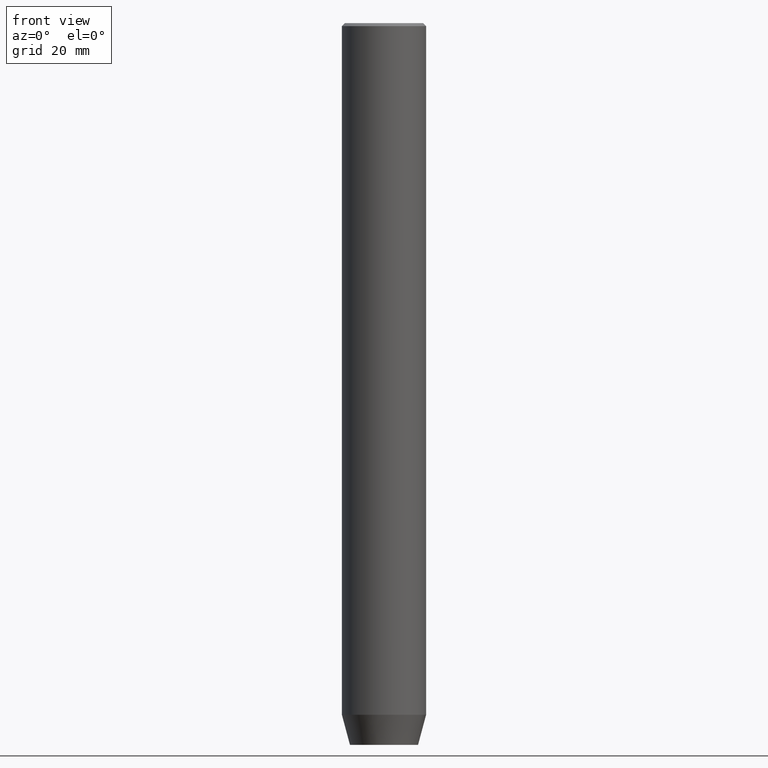
[diagram: clean part render]
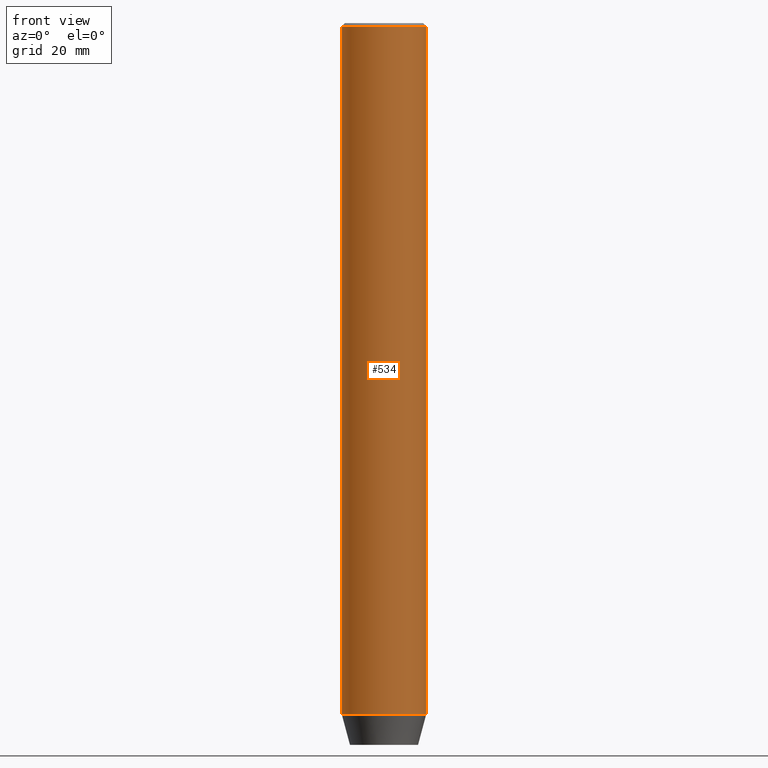
[diagram: same view with one face highlighted and labeled with its STEP entity id]
A machine part, front view. The second image highlights one B-rep face of the part: STEP entity #534.
In plain terms, the highlighted cylindrical surface (partial cylindrical patch) has radius 7 mm, axis along (-0, -0, 1).
Its self-contained STEP definition (entity closure, byte-faithful):
#1 = CYLINDRICAL_SURFACE ( 'NONE', #507, 7.000000000000000000 ) ;
#14 = DIRECTION ( 'NONE',  ( 1.000000000000000000, 0.000000000000000000, 0.000000000000000000 ) ) ;
#38 = VERTEX_POINT ( 'NONE', #381 ) ;
#51 = VECTOR ( 'NONE', #522, 1000.000000000000000 ) ;
#72 = ORIENTED_EDGE ( 'NONE', *, *, #180, .T. ) ;
#109 = DIRECTION ( 'NONE',  ( -0.000000000000000000, -0.000000000000000000, 1.000000000000000000 ) ) ;
#131 = ORIENTED_EDGE ( 'NONE', *, *, #568, .F. ) ;
#138 = VECTOR ( 'NONE', #109, 1000.000000000000000 ) ;
#150 = CARTESIAN_POINT ( 'NONE',  ( -7.000000000000000000, 8.572527594031473190E-16, -0.4999999999999908962 ) ) ;
#151 = EDGE_CURVE ( 'NONE', #389, #274, #421, .T. ) ;
#180 = EDGE_CURVE ( 'NONE', #516, #38, #517, .T. ) ;
#194 = DIRECTION ( 'NONE',  ( -0.000000000000000000, -0.000000000000000000, 1.000000000000000000 ) ) ;
#209 = CARTESIAN_POINT ( 'NONE',  ( 7.000000000000000000, 0.000000000000000000, -0.4999999999999908962 ) ) ;
#258 = EDGE_CURVE ( 'NONE', #38, #389, #523, .T. ) ;
#274 = VERTEX_POINT ( 'NONE', #150 ) ;
#285 = ORIENTED_EDGE ( 'NONE', *, *, #258, .T. ) ;
#294 = DIRECTION ( 'NONE',  ( 1.000000000000000000, 0.000000000000000000, 0.000000000000000000 ) ) ;
#318 = CARTESIAN_POINT ( 'NONE',  ( 0.000000000000000000, 0.000000000000000000, 0.000000000000000000 ) ) ;
#348 = EDGE_LOOP ( 'NONE', ( #131, #72, #285, #401 ) ) ;
#377 = LINE ( 'NONE', #567, #138 ) ;
#380 = DIRECTION ( 'NONE',  ( 0.000000000000000000, 0.000000000000000000, -1.000000000000000000 ) ) ;
#381 = CARTESIAN_POINT ( 'NONE',  ( 7.000000000000000000, 0.000000000000000000, -114.9999999999999858 ) ) ;
#388 = CARTESIAN_POINT ( 'NONE',  ( 0.000000000000000000, 0.000000000000000000, -0.4999999999999908962 ) ) ;
#389 = VERTEX_POINT ( 'NONE', #209 ) ;
#401 = ORIENTED_EDGE ( 'NONE', *, *, #151, .T. ) ;
#408 = FACE_OUTER_BOUND ( 'NONE', #348, .T. ) ;
#421 = CIRCLE ( 'NONE', #584, 7.000000000000000000 ) ;
#424 = CARTESIAN_POINT ( 'NONE',  ( 7.000000000000000000, 0.000000000000000000, 0.000000000000000000 ) ) ;
#472 = DIRECTION ( 'NONE',  ( 1.000000000000000000, 0.000000000000000000, 0.000000000000000000 ) ) ;
#496 = AXIS2_PLACEMENT_3D ( 'NONE', #557, #569, #472 ) ;
#507 = AXIS2_PLACEMENT_3D ( 'NONE', #318, #194, #14 ) ;
#516 = VERTEX_POINT ( 'NONE', #543 ) ;
#517 = CIRCLE ( 'NONE', #496, 7.000000000000000000 ) ;
#522 = DIRECTION ( 'NONE',  ( -0.000000000000000000, -0.000000000000000000, 1.000000000000000000 ) ) ;
#523 = LINE ( 'NONE', #424, #51 ) ;
#534 = ADVANCED_FACE ( 'NONE', ( #408 ), #1, .T. ) ;
#543 = CARTESIAN_POINT ( 'NONE',  ( -7.000000000000000000, 8.572527594031473190E-16, -114.9999999999999858 ) ) ;
#557 = CARTESIAN_POINT ( 'NONE',  ( 0.000000000000000000, 0.000000000000000000, -114.9999999999999858 ) ) ;
#567 = CARTESIAN_POINT ( 'NONE',  ( -7.000000000000000000, 8.572527594031473190E-16, 0.000000000000000000 ) ) ;
#568 = EDGE_CURVE ( 'NONE', #516, #274, #377, .T. ) ;
#569 = DIRECTION ( 'NONE',  ( -0.000000000000000000, -0.000000000000000000, 1.000000000000000000 ) ) ;
#584 = AXIS2_PLACEMENT_3D ( 'NONE', #388, #380, #294 ) ;